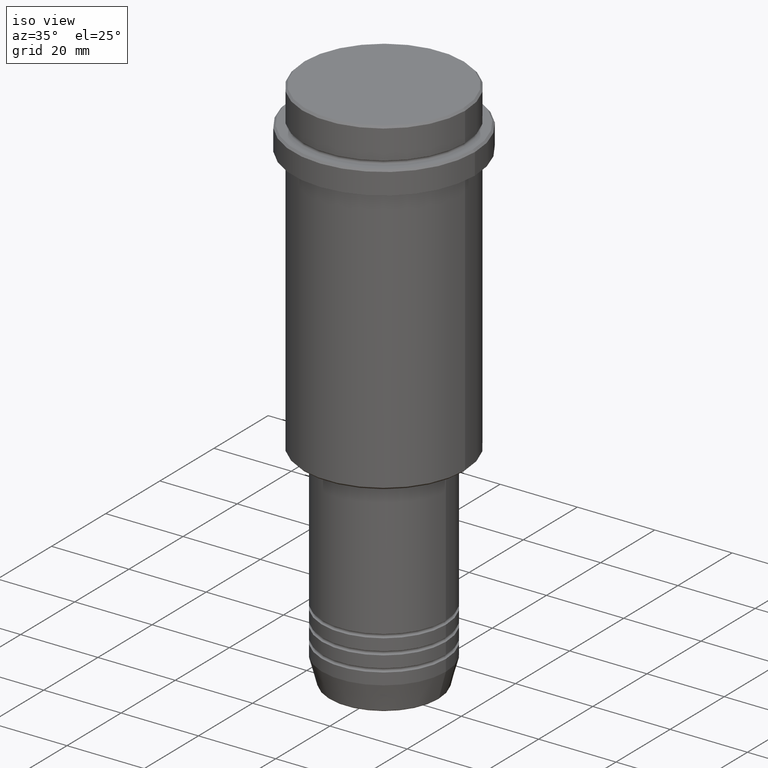
[diagram: clean part render]
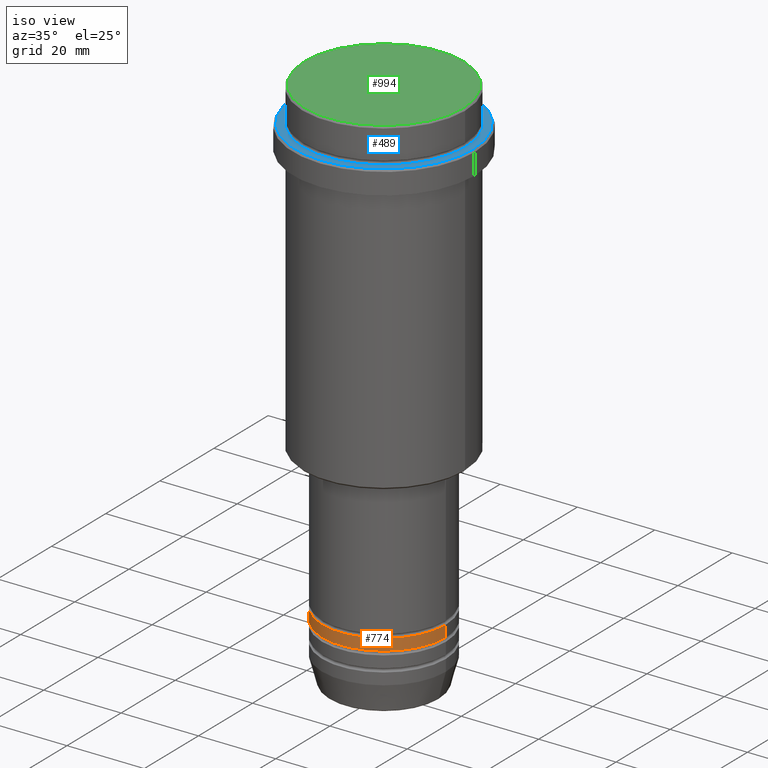
[diagram: same view with three faces highlighted in distinct colors, each labeled with its STEP entity id]
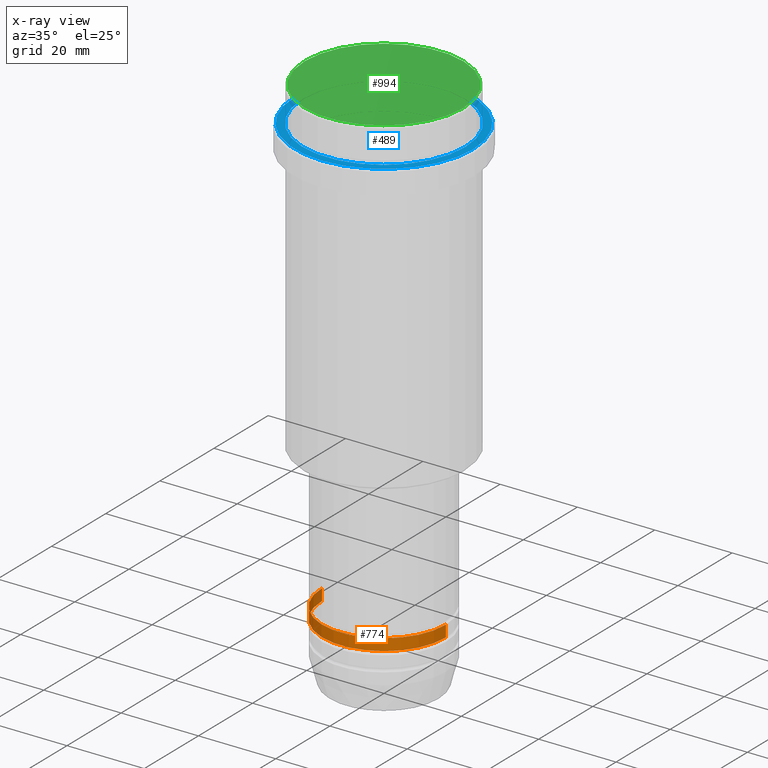
[diagram: x-ray of the same camera — body ghosted, the three highlighted faces saturated]
A machine part, iso view with three faces highlighted in distinct colors.
The next image is the same camera in x-ray (body ghosted, the three faces saturated) — at least one of them is partly hidden behind the body in this view.
Their STEP definitions:

[orange] entity #774 — the highlighted cylindrical surface (partial cylindrical patch) has radius 16 mm, axis along (-0, -0, 1).
#42 = AXIS2_PLACEMENT_3D ( 'NONE', #168, #799, #823 ) ;
#77 = CARTESIAN_POINT ( 'NONE',  ( 0.000000000000000000, 0.000000000000000000, -121.9999999999999005 ) ) ;
#151 = CARTESIAN_POINT ( 'NONE',  ( 16.00000000000000000, 0.000000000000000000, 0.000000000000000000 ) ) ;
#168 = CARTESIAN_POINT ( 'NONE',  ( 0.000000000000000000, 0.000000000000000000, 0.000000000000000000 ) ) ;
#253 = DIRECTION ( 'NONE',  ( -0.000000000000000000, -0.000000000000000000, 1.000000000000000000 ) ) ;
#289 = VECTOR ( 'NONE', #253, 1000.000000000000000 ) ;
#306 = EDGE_CURVE ( 'NONE', #1361, #919, #1101, .T. ) ;
#330 = ORIENTED_EDGE ( 'NONE', *, *, #1055, .F. ) ;
#386 = VECTOR ( 'NONE', #964, 1000.000000000000000 ) ;
#394 = CARTESIAN_POINT ( 'NONE',  ( 16.00000000000000000, 0.000000000000000000, -124.9999999999999005 ) ) ;
#423 = DIRECTION ( 'NONE',  ( -0.000000000000000000, -0.000000000000000000, 1.000000000000000000 ) ) ;
#431 = DIRECTION ( 'NONE',  ( 1.000000000000000000, 0.000000000000000000, 0.000000000000000000 ) ) ;
#457 = CARTESIAN_POINT ( 'NONE',  ( -16.00000000000000000, 1.959434878635765131E-15, -124.9999999999999005 ) ) ;
#526 = EDGE_CURVE ( 'NONE', #1104, #1361, #1387, .T. ) ;
#569 = ORIENTED_EDGE ( 'NONE', *, *, #306, .T. ) ;
#587 = CIRCLE ( 'NONE', #969, 16.00000000000000000 ) ;
#759 = AXIS2_PLACEMENT_3D ( 'NONE', #967, #423, #431 ) ;
#774 = ADVANCED_FACE ( 'NONE', ( #1154 ), #1140, .T. ) ;
#799 = DIRECTION ( 'NONE',  ( -0.000000000000000000, -0.000000000000000000, 1.000000000000000000 ) ) ;
#823 = DIRECTION ( 'NONE',  ( 1.000000000000000000, 0.000000000000000000, 0.000000000000000000 ) ) ;
#831 = DIRECTION ( 'NONE',  ( 1.000000000000000000, 0.000000000000000000, 0.000000000000000000 ) ) ;
#870 = CARTESIAN_POINT ( 'NONE',  ( -16.00000000000000000, 1.959434878635765131E-15, 0.000000000000000000 ) ) ;
#919 = VERTEX_POINT ( 'NONE', #1403 ) ;
#963 = ORIENTED_EDGE ( 'NONE', *, *, #1007, .F. ) ;
#964 = DIRECTION ( 'NONE',  ( -0.000000000000000000, -0.000000000000000000, 1.000000000000000000 ) ) ;
#967 = CARTESIAN_POINT ( 'NONE',  ( 0.000000000000000000, 0.000000000000000000, -124.9999999999999005 ) ) ;
#969 = AXIS2_PLACEMENT_3D ( 'NONE', #77, #1281, #831 ) ;
#995 = ORIENTED_EDGE ( 'NONE', *, *, #526, .T. ) ;
#1007 = EDGE_CURVE ( 'NONE', #1184, #919, #587, .T. ) ;
#1055 = EDGE_CURVE ( 'NONE', #1104, #1184, #1410, .T. ) ;
#1101 = LINE ( 'NONE', #151, #289 ) ;
#1104 = VERTEX_POINT ( 'NONE', #457 ) ;
#1140 = CYLINDRICAL_SURFACE ( 'NONE', #42, 16.00000000000000000 ) ;
#1154 = FACE_OUTER_BOUND ( 'NONE', #1204, .T. ) ;
#1184 = VERTEX_POINT ( 'NONE', #1247 ) ;
#1204 = EDGE_LOOP ( 'NONE', ( #330, #995, #569, #963 ) ) ;
#1247 = CARTESIAN_POINT ( 'NONE',  ( -16.00000000000000000, 1.959434878635765131E-15, -121.9999999999999005 ) ) ;
#1281 = DIRECTION ( 'NONE',  ( -0.000000000000000000, -0.000000000000000000, 1.000000000000000000 ) ) ;
#1361 = VERTEX_POINT ( 'NONE', #394 ) ;
#1387 = CIRCLE ( 'NONE', #759, 16.00000000000000000 ) ;
#1403 = CARTESIAN_POINT ( 'NONE',  ( 16.00000000000000000, 0.000000000000000000, -121.9999999999999005 ) ) ;
#1410 = LINE ( 'NONE', #870, #386 ) ;

[blue] entity #489 — the highlighted planar face has unit normal (0, -0, 1).
#27 = DIRECTION ( 'NONE',  ( 1.000000000000000000, 0.000000000000000000, 0.000000000000000000 ) ) ;
#160 = AXIS2_PLACEMENT_3D ( 'NONE', #1143, #1405, #1071 ) ;
#209 = FACE_OUTER_BOUND ( 'NONE', #507, .T. ) ;
#233 = ORIENTED_EDGE ( 'NONE', *, *, #499, .T. ) ;
#332 = DIRECTION ( 'NONE',  ( 0.000000000000000000, 0.000000000000000000, -1.000000000000000000 ) ) ;
#333 = AXIS2_PLACEMENT_3D ( 'NONE', #380, #1362, #482 ) ;
#344 = DIRECTION ( 'NONE',  ( -0.000000000000000000, -0.000000000000000000, 1.000000000000000000 ) ) ;
#349 = ORIENTED_EDGE ( 'NONE', *, *, #1164, .T. ) ;
#380 = CARTESIAN_POINT ( 'NONE',  ( 0.000000000000000000, 0.000000000000000000, -9.000000000000000000 ) ) ;
#415 = EDGE_CURVE ( 'NONE', #1280, #1334, #693, .T. ) ;
#439 = CARTESIAN_POINT ( 'NONE',  ( 0.000000000000000000, 0.000000000000000000, -9.000000000000000000 ) ) ;
#475 = AXIS2_PLACEMENT_3D ( 'NONE', #950, #853, #1364 ) ;
#482 = DIRECTION ( 'NONE',  ( 1.000000000000000000, 0.000000000000000000, 0.000000000000000000 ) ) ;
#489 = ADVANCED_FACE ( 'NONE', ( #209, #700 ), #622, .T. ) ;
#499 = EDGE_CURVE ( 'NONE', #559, #984, #1411, .T. ) ;
#507 = EDGE_LOOP ( 'NONE', ( #779, #966 ) ) ;
#559 = VERTEX_POINT ( 'NONE', #957 ) ;
#591 = CARTESIAN_POINT ( 'NONE',  ( -23.00000000000001066, 0.000000000000000000, -9.000000000000000000 ) ) ;
#622 = PLANE ( 'NONE',  #475 ) ;
#693 = CIRCLE ( 'NONE', #741, 23.00000000000001066 ) ;
#700 = FACE_BOUND ( 'NONE', #1075, .T. ) ;
#741 = AXIS2_PLACEMENT_3D ( 'NONE', #1118, #344, #27 ) ;
#755 = EDGE_CURVE ( 'NONE', #1334, #1280, #1275, .T. ) ;
#779 = ORIENTED_EDGE ( 'NONE', *, *, #755, .T. ) ;
#853 = DIRECTION ( 'NONE',  ( 0.000000000000000000, -0.000000000000000000, 1.000000000000000000 ) ) ;
#950 = CARTESIAN_POINT ( 'NONE',  ( 0.000000000000000000, 20.49999999999999645, -9.000000000000000000 ) ) ;
#957 = CARTESIAN_POINT ( 'NONE',  ( 20.99999999999999289, 0.000000000000000000, -9.000000000000000000 ) ) ;
#966 = ORIENTED_EDGE ( 'NONE', *, *, #415, .T. ) ;
#984 = VERTEX_POINT ( 'NONE', #1384 ) ;
#1071 = DIRECTION ( 'NONE',  ( 1.000000000000000000, 0.000000000000000000, 0.000000000000000000 ) ) ;
#1075 = EDGE_LOOP ( 'NONE', ( #233, #349 ) ) ;
#1118 = CARTESIAN_POINT ( 'NONE',  ( 0.000000000000000000, 0.000000000000000000, -9.000000000000000000 ) ) ;
#1137 = CIRCLE ( 'NONE', #1161, 20.99999999999999289 ) ;
#1143 = CARTESIAN_POINT ( 'NONE',  ( 0.000000000000000000, 0.000000000000000000, -9.000000000000000000 ) ) ;
#1161 = AXIS2_PLACEMENT_3D ( 'NONE', #439, #332, #1202 ) ;
#1164 = EDGE_CURVE ( 'NONE', #984, #559, #1137, .T. ) ;
#1202 = DIRECTION ( 'NONE',  ( 1.000000000000000000, 0.000000000000000000, 0.000000000000000000 ) ) ;
#1258 = CARTESIAN_POINT ( 'NONE',  ( 23.00000000000001066, 2.847303808017596928E-15, -9.000000000000000000 ) ) ;
#1275 = CIRCLE ( 'NONE', #333, 23.00000000000001066 ) ;
#1280 = VERTEX_POINT ( 'NONE', #1258 ) ;
#1334 = VERTEX_POINT ( 'NONE', #591 ) ;
#1362 = DIRECTION ( 'NONE',  ( -0.000000000000000000, -0.000000000000000000, 1.000000000000000000 ) ) ;
#1364 = DIRECTION ( 'NONE',  ( 1.000000000000000000, 0.000000000000000000, 0.000000000000000000 ) ) ;
#1384 = CARTESIAN_POINT ( 'NONE',  ( -20.99999999999999289, 2.571758278209440872E-15, -9.000000000000000000 ) ) ;
#1405 = DIRECTION ( 'NONE',  ( 0.000000000000000000, 0.000000000000000000, -1.000000000000000000 ) ) ;
#1411 = CIRCLE ( 'NONE', #160, 20.99999999999999289 ) ;

[green] entity #994 — the highlighted planar face has unit normal (0, -0, 1).
#113 = CARTESIAN_POINT ( 'NONE',  ( 0.000000000000000000, 0.000000000000000000, 0.000000000000000000 ) ) ;
#140 = CARTESIAN_POINT ( 'NONE',  ( 0.000000000000000000, 0.000000000000000000, 0.000000000000000000 ) ) ;
#221 = VERTEX_POINT ( 'NONE', #1320 ) ;
#287 = DIRECTION ( 'NONE',  ( 0.000000000000000000, -0.000000000000000000, 1.000000000000000000 ) ) ;
#314 = CIRCLE ( 'NONE', #452, 20.49999999999996447 ) ;
#353 = DIRECTION ( 'NONE',  ( -0.000000000000000000, -0.000000000000000000, 1.000000000000000000 ) ) ;
#398 = FACE_OUTER_BOUND ( 'NONE', #702, .T. ) ;
#418 = DIRECTION ( 'NONE',  ( 1.000000000000000000, 0.000000000000000000, 0.000000000000000000 ) ) ;
#452 = AXIS2_PLACEMENT_3D ( 'NONE', #140, #353, #485 ) ;
#485 = DIRECTION ( 'NONE',  ( 1.000000000000000000, 0.000000000000000000, 0.000000000000000000 ) ) ;
#702 = EDGE_LOOP ( 'NONE', ( #1116, #1351 ) ) ;
#720 = CIRCLE ( 'NONE', #761, 20.49999999999996447 ) ;
#724 = EDGE_CURVE ( 'NONE', #1358, #221, #720, .T. ) ;
#761 = AXIS2_PLACEMENT_3D ( 'NONE', #113, #1331, #1099 ) ;
#933 = AXIS2_PLACEMENT_3D ( 'NONE', #1265, #287, #418 ) ;
#938 = CARTESIAN_POINT ( 'NONE',  ( 20.49999999999996447, 2.541142108230755902E-15, 0.000000000000000000 ) ) ;
#994 = ADVANCED_FACE ( 'NONE', ( #398 ), #1397, .T. ) ;
#1099 = DIRECTION ( 'NONE',  ( 1.000000000000000000, 0.000000000000000000, 0.000000000000000000 ) ) ;
#1116 = ORIENTED_EDGE ( 'NONE', *, *, #1208, .T. ) ;
#1208 = EDGE_CURVE ( 'NONE', #221, #1358, #314, .T. ) ;
#1265 = CARTESIAN_POINT ( 'NONE',  ( 0.000000000000000000, 0.000000000000000000, 0.000000000000000000 ) ) ;
#1320 = CARTESIAN_POINT ( 'NONE',  ( -20.49999999999996447, 0.000000000000000000, 0.000000000000000000 ) ) ;
#1331 = DIRECTION ( 'NONE',  ( -0.000000000000000000, -0.000000000000000000, 1.000000000000000000 ) ) ;
#1351 = ORIENTED_EDGE ( 'NONE', *, *, #724, .T. ) ;
#1358 = VERTEX_POINT ( 'NONE', #938 ) ;
#1397 = PLANE ( 'NONE',  #933 ) ;